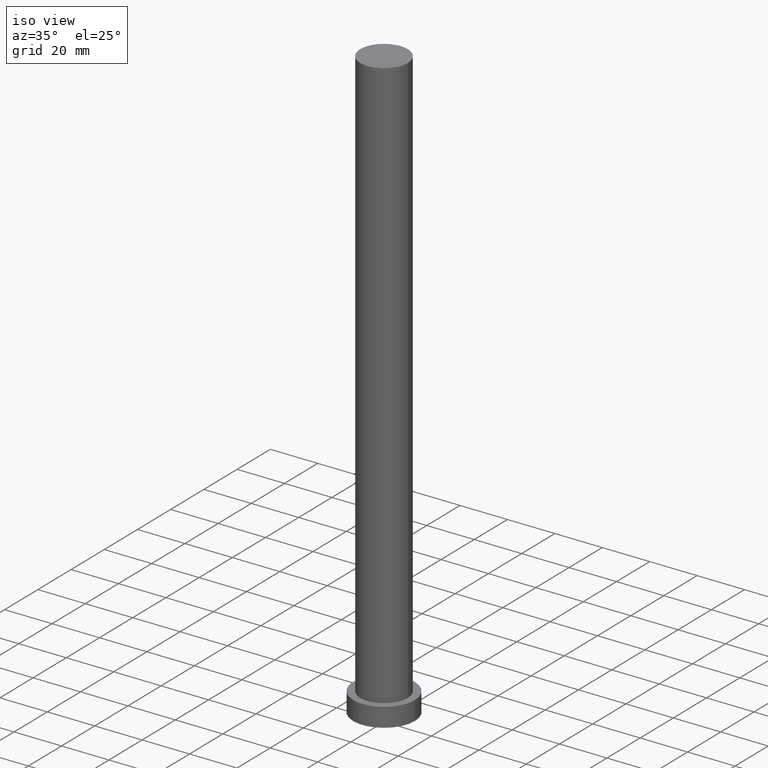
[diagram: clean part render]
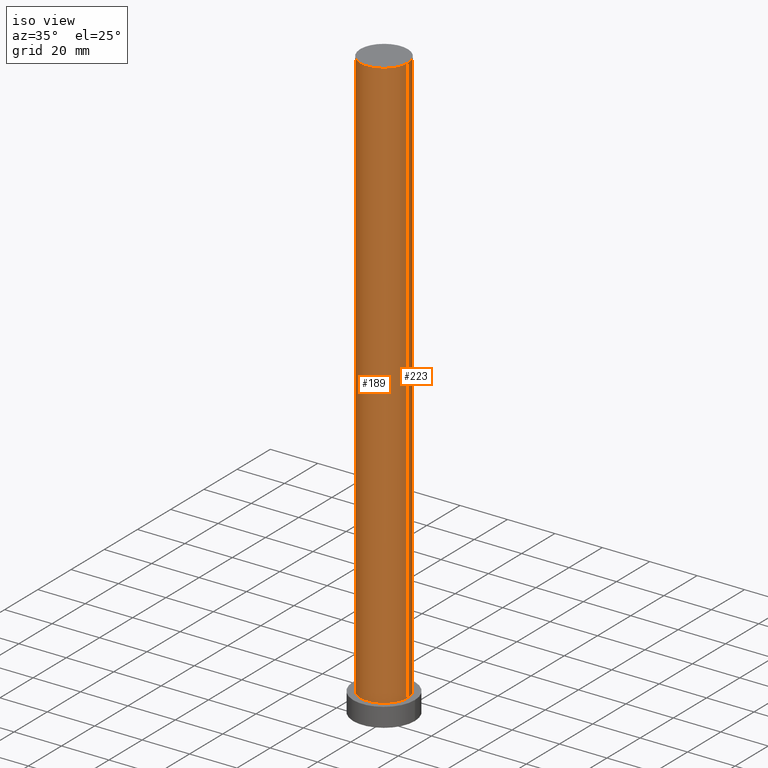
[diagram: same view with one multi-face feature highlighted, each face labeled with its STEP entity id]
A machine part, iso view. The highlighted faces form ONE feature: a constant-radius fillet chain: 2 tangent blend faces with common blend radius 10 mm. The faces share edges in the B-rep.
Their STEP definitions:
[1] entity #223 (Cylinder):
#11 = ORIENTED_EDGE ( 'NONE', *, *, #172, .T. ) ;
#14 = EDGE_CURVE ( 'NONE', #49, #42, #93, .T. ) ;
#16 = CIRCLE ( 'NONE', #156, 10.00000000000000000 ) ;
#17 = DIRECTION ( 'NONE',  ( -1.000000000000000000, 0.000000000000000000, 0.000000000000000000 ) ) ;
#19 = CARTESIAN_POINT ( 'NONE',  ( 0.000000000000000000, 0.000000000000000000, 8.000000000000000000 ) ) ;
#21 = DIRECTION ( 'NONE',  ( 0.000000000000000000, 0.000000000000000000, 1.000000000000000000 ) ) ;
#28 = ORIENTED_EDGE ( 'NONE', *, *, #239, .F. ) ;
#30 = CARTESIAN_POINT ( 'NONE',  ( 10.00000000000000000, 1.224646799147353256E-15, 250.0000000000000000 ) ) ;
#33 = DIRECTION ( 'NONE',  ( -0.000000000000000000, -0.000000000000000000, -1.000000000000000000 ) ) ;
#42 = VERTEX_POINT ( 'NONE', #95 ) ;
#49 = VERTEX_POINT ( 'NONE', #30 ) ;
#53 = EDGE_LOOP ( 'NONE', ( #108, #107, #11, #28 ) ) ;
#76 = CARTESIAN_POINT ( 'NONE',  ( 10.00000000000000000, 1.224646799147353256E-15, 250.0000000000000000 ) ) ;
#87 = VERTEX_POINT ( 'NONE', #124 ) ;
#93 = LINE ( 'NONE', #76, #227 ) ;
#95 = CARTESIAN_POINT ( 'NONE',  ( 10.00000000000000000, 1.224646799147353256E-15, 8.000000000000000000 ) ) ;
#101 = DIRECTION ( 'NONE',  ( 1.000000000000000000, 0.000000000000000000, 0.000000000000000000 ) ) ;
#107 = ORIENTED_EDGE ( 'NONE', *, *, #14, .T. ) ;
#108 = ORIENTED_EDGE ( 'NONE', *, *, #155, .F. ) ;
#121 = FACE_OUTER_BOUND ( 'NONE', #53, .T. ) ;
#124 = CARTESIAN_POINT ( 'NONE',  ( -10.00000000000000000, 0.000000000000000000, 250.0000000000000000 ) ) ;
#132 = AXIS2_PLACEMENT_3D ( 'NONE', #171, #33, #17 ) ;
#135 = CARTESIAN_POINT ( 'NONE',  ( -10.00000000000000000, 0.000000000000000000, 250.0000000000000000 ) ) ;
#146 = DIRECTION ( 'NONE',  ( 1.000000000000000000, 0.000000000000000000, 0.000000000000000000 ) ) ;
#155 = EDGE_CURVE ( 'NONE', #49, #87, #221, .T. ) ;
#156 = AXIS2_PLACEMENT_3D ( 'NONE', #19, #179, #146 ) ;
#171 = CARTESIAN_POINT ( 'NONE',  ( 0.000000000000000000, 0.000000000000000000, 250.0000000000000000 ) ) ;
#172 = EDGE_CURVE ( 'NONE', #42, #237, #16, .T. ) ;
#179 = DIRECTION ( 'NONE',  ( 0.000000000000000000, 0.000000000000000000, 1.000000000000000000 ) ) ;
#197 = CARTESIAN_POINT ( 'NONE',  ( 0.000000000000000000, 0.000000000000000000, 250.0000000000000000 ) ) ;
#208 = VECTOR ( 'NONE', #210, 1000.000000000000000 ) ;
#210 = DIRECTION ( 'NONE',  ( -0.000000000000000000, -0.000000000000000000, -1.000000000000000000 ) ) ;
#215 = DIRECTION ( 'NONE',  ( -0.000000000000000000, -0.000000000000000000, -1.000000000000000000 ) ) ;
#221 = CIRCLE ( 'NONE', #247, 10.00000000000000000 ) ;
#223 = ADVANCED_FACE ( 'NONE', ( #121 ), #231, .T. ) ;
#227 = VECTOR ( 'NONE', #215, 1000.000000000000000 ) ;
#231 = CYLINDRICAL_SURFACE ( 'NONE', #132, 10.00000000000000000 ) ;
#237 = VERTEX_POINT ( 'NONE', #251 ) ;
#239 = EDGE_CURVE ( 'NONE', #87, #237, #253, .T. ) ;
#247 = AXIS2_PLACEMENT_3D ( 'NONE', #197, #21, #101 ) ;
#251 = CARTESIAN_POINT ( 'NONE',  ( -10.00000000000000000, 0.000000000000000000, 8.000000000000000000 ) ) ;
#253 = LINE ( 'NONE', #135, #208 ) ;
[2] entity #189 (Cylinder):
#2 = CYLINDRICAL_SURFACE ( 'NONE', #174, 10.00000000000000000 ) ;
#7 = CARTESIAN_POINT ( 'NONE',  ( 0.000000000000000000, 0.000000000000000000, 8.000000000000000000 ) ) ;
#14 = EDGE_CURVE ( 'NONE', #49, #42, #93, .T. ) ;
#30 = CARTESIAN_POINT ( 'NONE',  ( 10.00000000000000000, 1.224646799147353256E-15, 250.0000000000000000 ) ) ;
#42 = VERTEX_POINT ( 'NONE', #95 ) ;
#49 = VERTEX_POINT ( 'NONE', #30 ) ;
#66 = AXIS2_PLACEMENT_3D ( 'NONE', #7, #226, #214 ) ;
#68 = EDGE_LOOP ( 'NONE', ( #91, #224, #145, #151 ) ) ;
#76 = CARTESIAN_POINT ( 'NONE',  ( 10.00000000000000000, 1.224646799147353256E-15, 250.0000000000000000 ) ) ;
#81 = CIRCLE ( 'NONE', #66, 10.00000000000000000 ) ;
#83 = DIRECTION ( 'NONE',  ( -0.000000000000000000, -0.000000000000000000, -1.000000000000000000 ) ) ;
#87 = VERTEX_POINT ( 'NONE', #124 ) ;
#88 = FACE_OUTER_BOUND ( 'NONE', #68, .T. ) ;
#91 = ORIENTED_EDGE ( 'NONE', *, *, #14, .F. ) ;
#93 = LINE ( 'NONE', #76, #227 ) ;
#95 = CARTESIAN_POINT ( 'NONE',  ( 10.00000000000000000, 1.224646799147353256E-15, 8.000000000000000000 ) ) ;
#96 = EDGE_CURVE ( 'NONE', #237, #42, #81, .T. ) ;
#98 = DIRECTION ( 'NONE',  ( 1.000000000000000000, 0.000000000000000000, 0.000000000000000000 ) ) ;
#120 = EDGE_CURVE ( 'NONE', #87, #49, #138, .T. ) ;
#124 = CARTESIAN_POINT ( 'NONE',  ( -10.00000000000000000, 0.000000000000000000, 250.0000000000000000 ) ) ;
#135 = CARTESIAN_POINT ( 'NONE',  ( -10.00000000000000000, 0.000000000000000000, 250.0000000000000000 ) ) ;
#138 = CIRCLE ( 'NONE', #232, 10.00000000000000000 ) ;
#145 = ORIENTED_EDGE ( 'NONE', *, *, #239, .T. ) ;
#151 = ORIENTED_EDGE ( 'NONE', *, *, #96, .T. ) ;
#157 = DIRECTION ( 'NONE',  ( 0.000000000000000000, 0.000000000000000000, 1.000000000000000000 ) ) ;
#174 = AXIS2_PLACEMENT_3D ( 'NONE', #218, #83, #202 ) ;
#189 = ADVANCED_FACE ( 'NONE', ( #88 ), #2, .T. ) ;
#199 = CARTESIAN_POINT ( 'NONE',  ( 0.000000000000000000, 0.000000000000000000, 250.0000000000000000 ) ) ;
#202 = DIRECTION ( 'NONE',  ( -1.000000000000000000, 0.000000000000000000, 0.000000000000000000 ) ) ;
#208 = VECTOR ( 'NONE', #210, 1000.000000000000000 ) ;
#210 = DIRECTION ( 'NONE',  ( -0.000000000000000000, -0.000000000000000000, -1.000000000000000000 ) ) ;
#214 = DIRECTION ( 'NONE',  ( 1.000000000000000000, 0.000000000000000000, 0.000000000000000000 ) ) ;
#215 = DIRECTION ( 'NONE',  ( -0.000000000000000000, -0.000000000000000000, -1.000000000000000000 ) ) ;
#218 = CARTESIAN_POINT ( 'NONE',  ( 0.000000000000000000, 0.000000000000000000, 250.0000000000000000 ) ) ;
#224 = ORIENTED_EDGE ( 'NONE', *, *, #120, .F. ) ;
#226 = DIRECTION ( 'NONE',  ( 0.000000000000000000, 0.000000000000000000, 1.000000000000000000 ) ) ;
#227 = VECTOR ( 'NONE', #215, 1000.000000000000000 ) ;
#232 = AXIS2_PLACEMENT_3D ( 'NONE', #199, #157, #98 ) ;
#237 = VERTEX_POINT ( 'NONE', #251 ) ;
#239 = EDGE_CURVE ( 'NONE', #87, #237, #253, .T. ) ;
#251 = CARTESIAN_POINT ( 'NONE',  ( -10.00000000000000000, 0.000000000000000000, 8.000000000000000000 ) ) ;
#253 = LINE ( 'NONE', #135, #208 ) ;